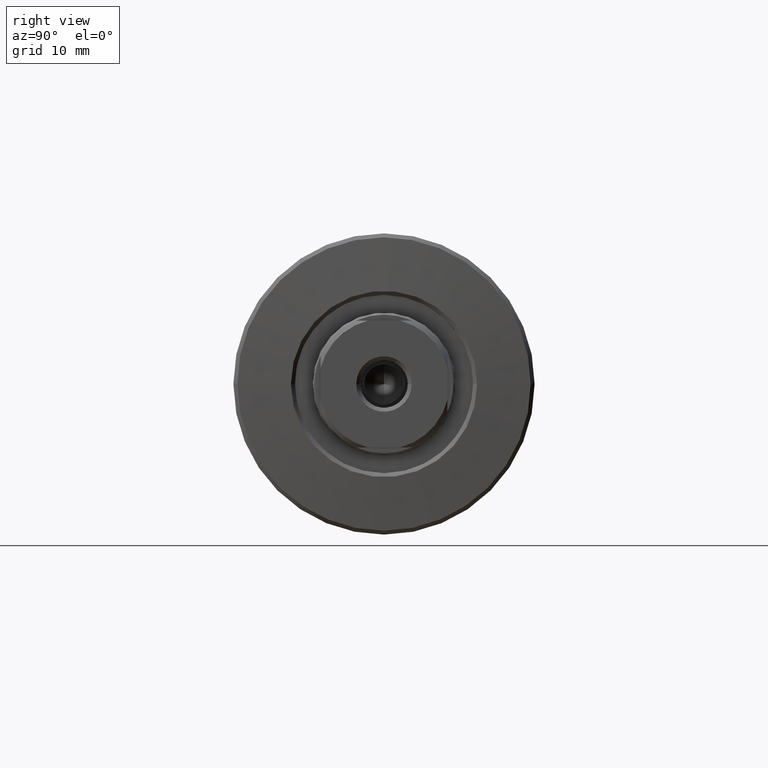
[diagram: clean part render]
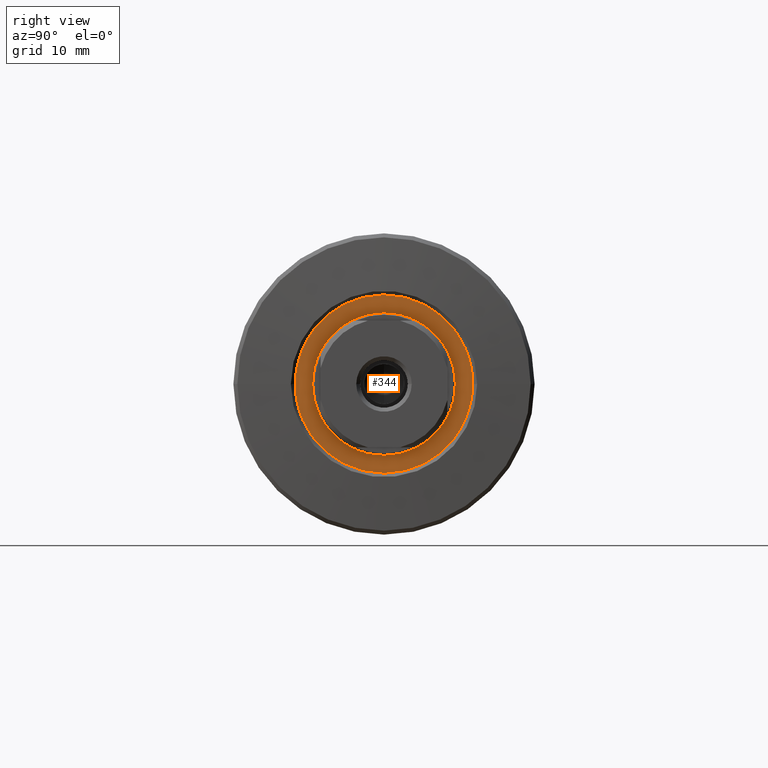
[diagram: same view with one face highlighted and labeled with its STEP entity id]
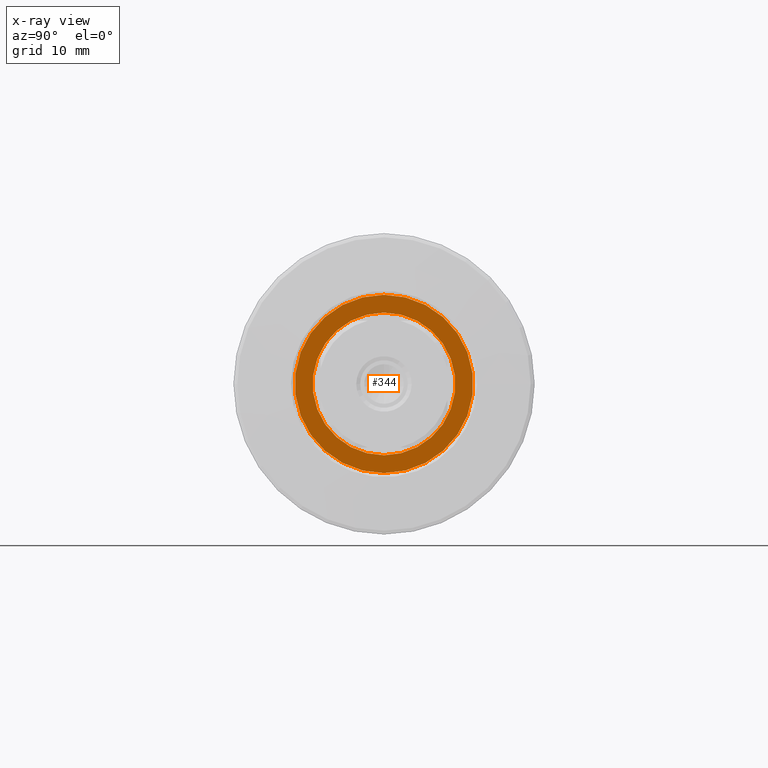
[diagram: x-ray of the same camera — body ghosted, the highlighted face saturated]
A machine part, right view. The second image highlights one B-rep face of the part: STEP entity #344.
The next image is the same camera in x-ray: the body ghosted, the highlighted face saturated — about 0% of this face is hidden behind the body in this view.
In plain terms, the highlighted planar face has unit normal (1, 0, 0).
Its self-contained STEP definition (entity closure, byte-faithful):
#47 = ORIENTED_EDGE ( 'NONE', *, *, #1583, .F. ) ;
#83 = CARTESIAN_POINT ( 'NONE',  ( -1.500000000000000000, 0.000000000000000000, -11.25000000000000178 ) ) ;
#89 = CARTESIAN_POINT ( 'NONE',  ( -1.500000000000000000, 1.377727649040772586E-15, 11.25000000000000178 ) ) ;
#97 = VERTEX_POINT ( 'NONE', #89 ) ;
#135 = AXIS2_PLACEMENT_3D ( 'NONE', #1150, #1917, #1738 ) ;
#258 = DIRECTION ( 'NONE',  ( 1.000000000000000000, 0.000000000000000000, 0.000000000000000000 ) ) ;
#266 = ORIENTED_EDGE ( 'NONE', *, *, #1294, .T. ) ;
#304 = FACE_BOUND ( 'NONE', #974, .T. ) ;
#308 = CARTESIAN_POINT ( 'NONE',  ( -1.500000000000000000, 0.000000000000000000, 0.000000000000000000 ) ) ;
#311 = DIRECTION ( 'NONE',  ( 0.000000000000000000, 0.000000000000000000, -1.000000000000000000 ) ) ;
#344 = ADVANCED_FACE ( 'NONE', ( #304, #697 ), #1049, .T. ) ;
#356 = AXIS2_PLACEMENT_3D ( 'NONE', #308, #886, #1452 ) ;
#389 = EDGE_CURVE ( 'NONE', #97, #1001, #1297, .T. ) ;
#454 = DIRECTION ( 'NONE',  ( 0.000000000000000000, 0.000000000000000000, -1.000000000000000000 ) ) ;
#498 = EDGE_LOOP ( 'NONE', ( #266, #2398 ) ) ;
#556 = EDGE_CURVE ( 'NONE', #2329, #1082, #1070, .T. ) ;
#684 = CARTESIAN_POINT ( 'NONE',  ( -1.500000000000000000, 0.000000000000000000, 0.000000000000000000 ) ) ;
#697 = FACE_OUTER_BOUND ( 'NONE', #498, .T. ) ;
#886 = DIRECTION ( 'NONE',  ( 1.000000000000000000, 0.000000000000000000, 0.000000000000000000 ) ) ;
#924 = ORIENTED_EDGE ( 'NONE', *, *, #556, .F. ) ;
#974 = EDGE_LOOP ( 'NONE', ( #924, #47 ) ) ;
#1001 = VERTEX_POINT ( 'NONE', #83 ) ;
#1049 = PLANE ( 'NONE',  #2433 ) ;
#1070 = CIRCLE ( 'NONE', #2249, 9.000000000000000000 ) ;
#1082 = VERTEX_POINT ( 'NONE', #1645 ) ;
#1130 = DIRECTION ( 'NONE',  ( 0.000000000000000000, 0.000000000000000000, -1.000000000000000000 ) ) ;
#1150 = CARTESIAN_POINT ( 'NONE',  ( -1.500000000000000000, 0.000000000000000000, 0.000000000000000000 ) ) ;
#1249 = DIRECTION ( 'NONE',  ( 1.000000000000000000, 0.000000000000000000, 0.000000000000000000 ) ) ;
#1294 = EDGE_CURVE ( 'NONE', #1001, #97, #1880, .T. ) ;
#1297 = CIRCLE ( 'NONE', #135, 11.25000000000000178 ) ;
#1302 = CIRCLE ( 'NONE', #356, 9.000000000000000000 ) ;
#1452 = DIRECTION ( 'NONE',  ( 0.000000000000000000, 0.000000000000000000, -1.000000000000000000 ) ) ;
#1583 = EDGE_CURVE ( 'NONE', #1082, #2329, #1302, .T. ) ;
#1645 = CARTESIAN_POINT ( 'NONE',  ( -1.500000000000000000, 1.102182119232617517E-15, 9.000000000000000000 ) ) ;
#1702 = CARTESIAN_POINT ( 'NONE',  ( -1.500000000000000000, 0.000000000000000000, 0.000000000000000000 ) ) ;
#1736 = CARTESIAN_POINT ( 'NONE',  ( -1.500000000000000000, 0.000000000000000000, -9.000000000000000000 ) ) ;
#1738 = DIRECTION ( 'NONE',  ( 0.000000000000000000, 0.000000000000000000, -1.000000000000000000 ) ) ;
#1863 = DIRECTION ( 'NONE',  ( 1.000000000000000000, 0.000000000000000000, 0.000000000000000000 ) ) ;
#1880 = CIRCLE ( 'NONE', #2218, 11.25000000000000178 ) ;
#1917 = DIRECTION ( 'NONE',  ( 1.000000000000000000, 0.000000000000000000, 0.000000000000000000 ) ) ;
#2218 = AXIS2_PLACEMENT_3D ( 'NONE', #1702, #1863, #1130 ) ;
#2249 = AXIS2_PLACEMENT_3D ( 'NONE', #2295, #258, #454 ) ;
#2295 = CARTESIAN_POINT ( 'NONE',  ( -1.500000000000000000, 0.000000000000000000, 0.000000000000000000 ) ) ;
#2329 = VERTEX_POINT ( 'NONE', #1736 ) ;
#2398 = ORIENTED_EDGE ( 'NONE', *, *, #389, .T. ) ;
#2433 = AXIS2_PLACEMENT_3D ( 'NONE', #684, #1249, #311 ) ;